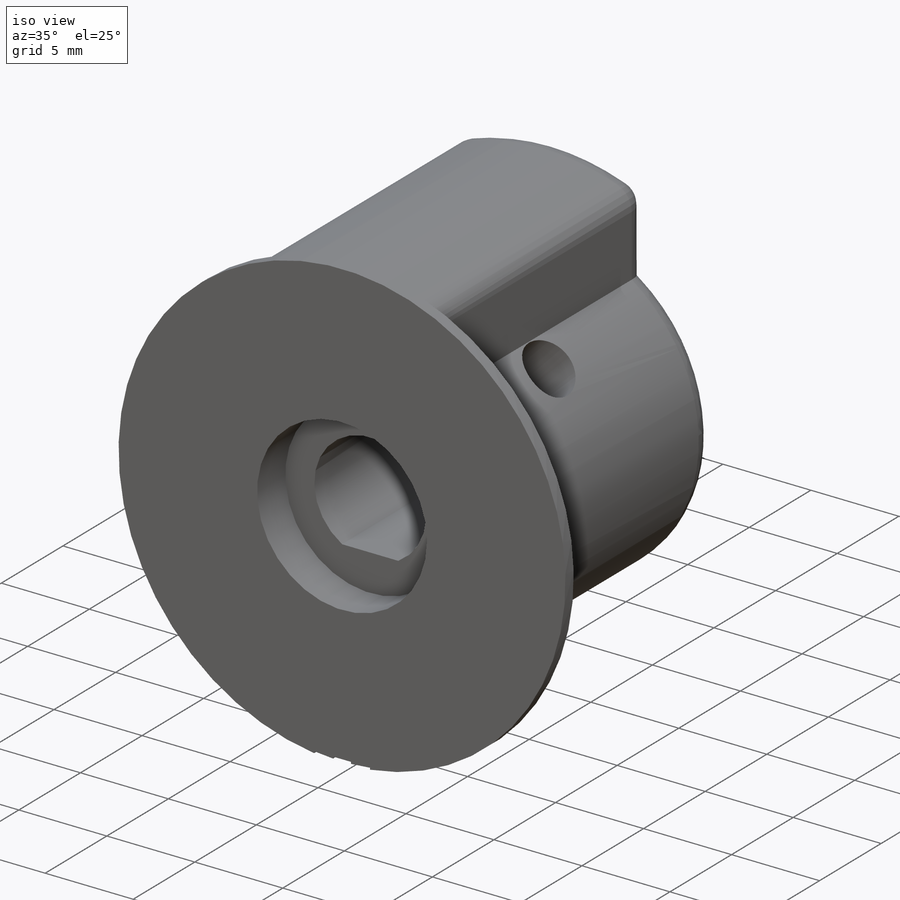
[diagram: iso view]
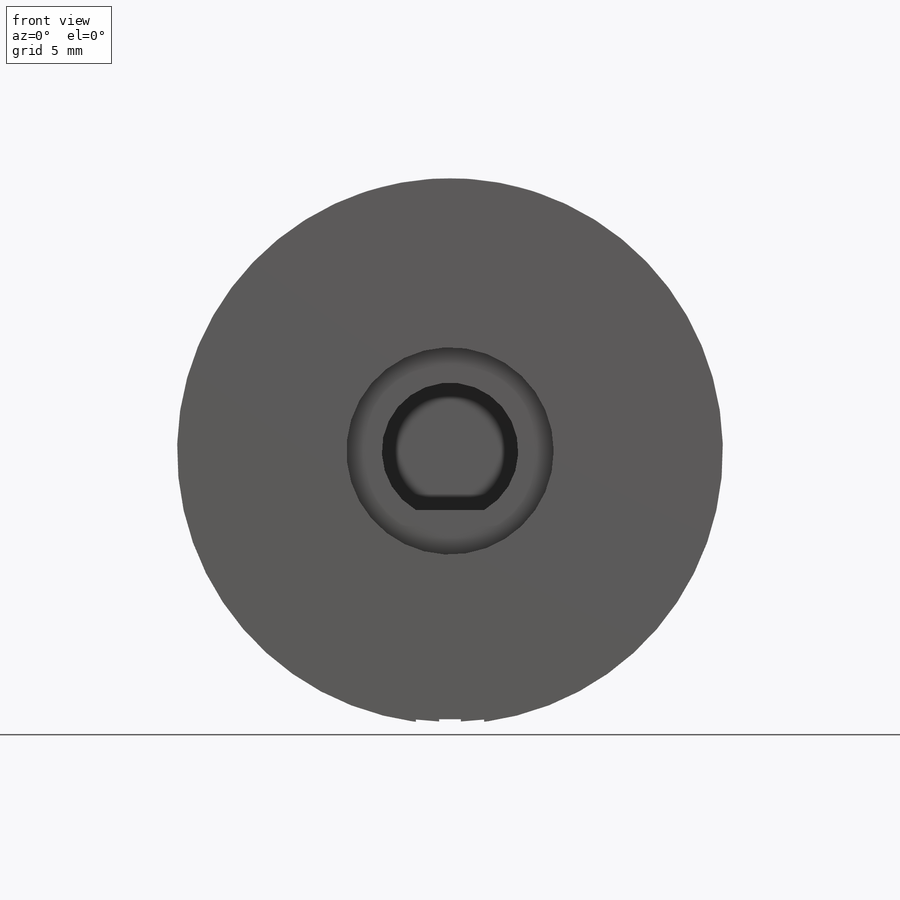
[diagram: front view]
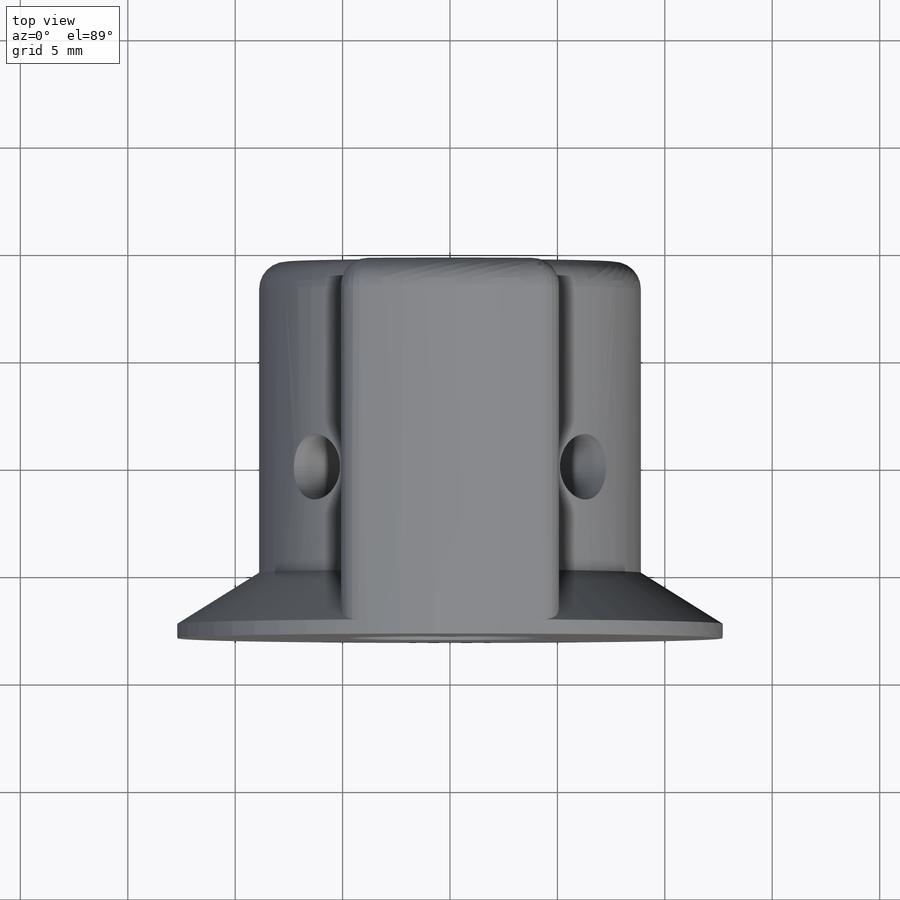
[diagram: top view]
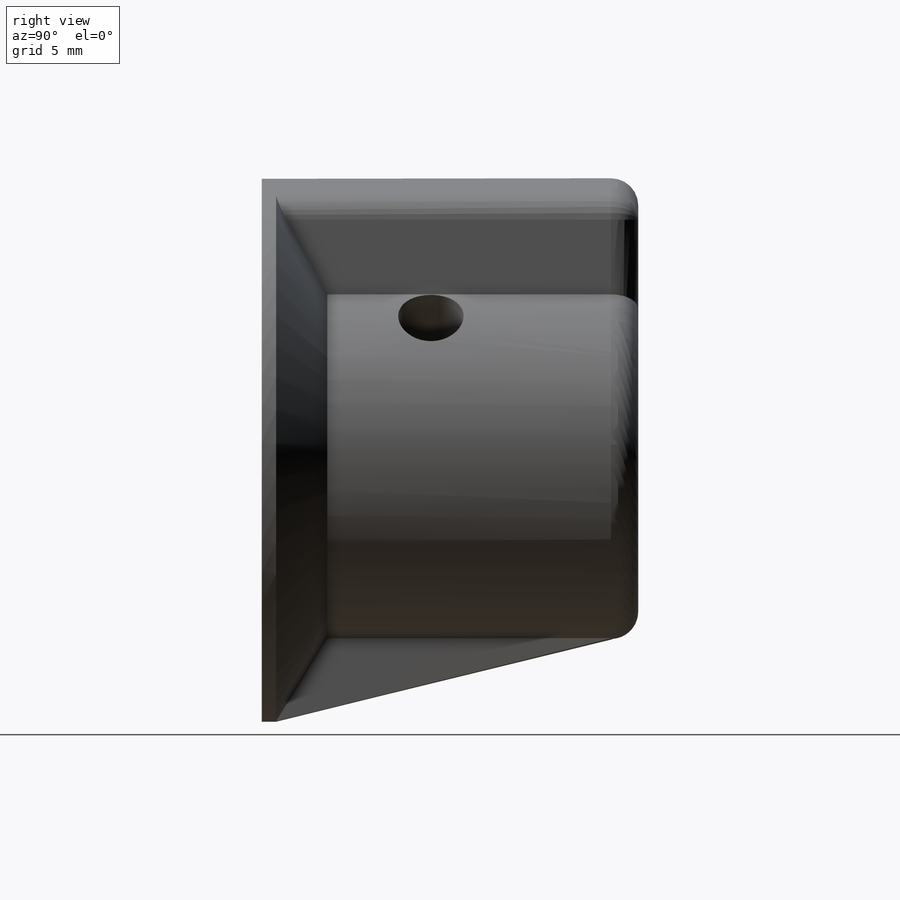
[diagram: right view]
SOLIDWORKS PART (.sldprt)
format: sldprt  version: not decoded by parser v0  size: 534,016 bytes
history: native  units: mm
features: sketch x16, plane x7, cut_extrude x7, extrude x3, material x1, chamfer x1, fillet x1, cut_revolve x1, mirror x1 (+10 scaffold rows collapsed)
feature tree (48):
  scaffold x10  (default folders/planes/origin — collapsed)
  material  "PMMA"
  plane  " "
  sketch  "Skica2"  dims[D1=25.4mm]
  extrude  "Přidat vysunutím2"  Depth=3.048mm
  sketch  "Skica3"  dims[c1.D1=5.6243mm c1.D2=8.89mm c2.D1=3.8227mm c2.D2=3.8227mm]
  extrude  "Přidat vysunutím3"  Depth=14.478mm
  sketch  "Skica6"  dims[D1=6.35mm D2=2.7432mm]
  cut_extrude  "Odebrat vysunutím2"  Depth=14.224mm
  sketch  "Skica7"  dims[D1=7.366mm]
  cut_extrude  "Odebrat vysunutím3"  Depth=2.286mm
  chamfer  "Zkosení1"  Distance=3.81mm Angle=32deg
  fillet  "Zaoblit3"  Radius=1.27mm
  sketch  "Skica8"  dims[D1=~1.78435mm D2=~1.78435mm]
  extrude  "Přidat vysunutím5"  Depth=13.97mm
  sketch  "Skica11"
  cut_revolve  "Odebrat rotací1"  Angle=30deg
  sketch  "Skica12"  dims[D1=1.27mm D2=1.5875mm D3=1.5875mm]
  cut_extrude  "Odebrat vysunutím5"  Depth=0.1016mm
  sketch  "Skica13"  dims[D1=0.508mm D2=0.508mm]
  cut_extrude  "Odebrat vysunutím6"  Depth=0.1016mm
  plane  "Rovina1"
  sketch  "Skica16"
  plane  "Rovina2"
  sketch  "Skica17"  dims[c1.D1=25.4mm c1.D2=25.4mm c1.D3=25.1968mm c2.D1=0.1016mm c2.D3=0.1016mm c2.D4=0.508mm]
  cut_extrude  "Odebrat vysunutím7"  [1 undecoded]
  plane  "Rovina3"
  sketch  "Skica19"
  plane  "Rovina4"
  sketch  "Skica20"  dims[D1=0.0mm]
  cut_extrude  "Odebrat vysunutím8"  [1 undecoded]
  plane  "Rovina5"
  sketch  "Skica21"
  sketch  "Skica22"  dims[D1=0.0mm]
  sketch  "Skica23"
  plane  "Rovina6"
  sketch  "Skica24"  dims[D1=7.874mm]
  cut_extrude  "Odebrat vysunutím9"  [1 undecoded]
  mirror  "Zrcadlit1"
decode coverage: 21 of 30 modeling features carry decoded parameters
note: ~ marks probable driven/reference dimensions
note: 3 parameter values undecoded
summary: no parameter record found for 3 features
note: suppression state not decoded; provenance and decode notes live in map.json
